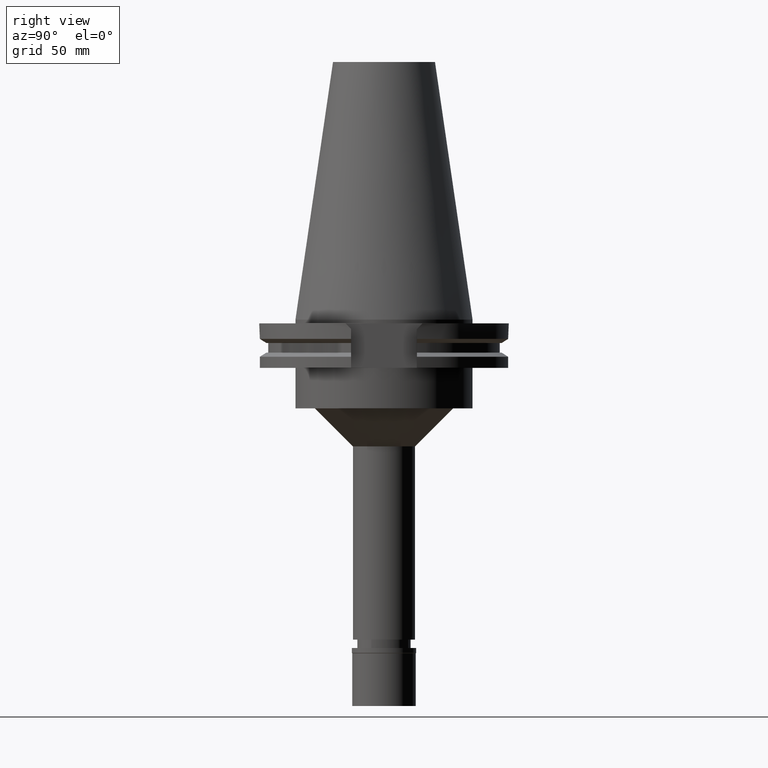
[diagram: clean part render]
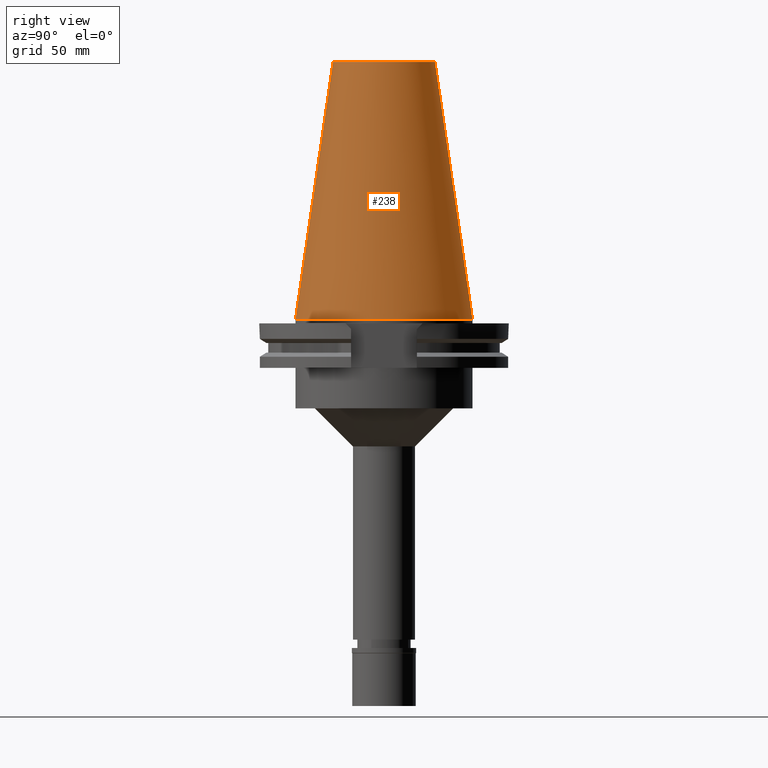
[diagram: same view with one face highlighted and labeled with its STEP entity id]
A machine part, right view. The second image highlights one B-rep face of the part: STEP entity #238.
In plain terms, the highlighted conical surface has half-angle 8.297 deg.
Its self-contained STEP definition (entity closure, byte-faithful):
#22 = DIRECTION ( 'NONE',  ( 0.0000000000000000000, 1.000000000000000000, 0.0000000000000000000 ) ) ;
#163 = VERTEX_POINT ( 'NONE', #684 ) ;
#182 = LINE ( 'NONE', #2269, #1262 ) ;
#217 = CONICAL_SURFACE ( 'NONE', #3276, 27.51666211194000056, 0.1448125860318199565 ) ;
#224 = AXIS2_PLACEMENT_3D ( 'NONE', #1837, #1032, #22 ) ;
#230 = DIRECTION ( 'NONE',  ( 0.0000000000000000000, -0.1443069799456937474, -0.9895329683941577192 ) ) ;
#238 = ADVANCED_FACE ( 'NONE', ( #3216 ), #217, .T. ) ;
#275 = ORIENTED_EDGE ( 'NONE', *, *, #1447, .T. ) ;
#344 = CARTESIAN_POINT ( 'NONE',  ( 0.0000000000000000000, -34.92499999999999716, 4.263256414560999963E-13 ) ) ;
#395 = CARTESIAN_POINT ( 'NONE',  ( 0.0000000000000000000, 1.846767373113999857E-14, 50.79999999999999716 ) ) ;
#684 = CARTESIAN_POINT ( 'NONE',  ( 0.0000000000000000000, 20.10832422388000040, 101.5999999999999943 ) ) ;
#706 = EDGE_CURVE ( 'NONE', #163, #1246, #182, .T. ) ;
#951 = EDGE_CURVE ( 'NONE', #1140, #2230, #1814, .T. ) ;
#979 = CARTESIAN_POINT ( 'NONE',  ( 0.0000000000000000000, 34.92499999999999716, 4.263256414560999963E-13 ) ) ;
#1032 = DIRECTION ( 'NONE',  ( 0.0000000000000000000, 0.0000000000000000000, -1.000000000000000000 ) ) ;
#1140 = VERTEX_POINT ( 'NONE', #2967 ) ;
#1193 = DIRECTION ( 'NONE',  ( 0.0000000000000000000, 0.1443069799456937474, -0.9895329683941577192 ) ) ;
#1246 = VERTEX_POINT ( 'NONE', #979 ) ;
#1262 = VECTOR ( 'NONE', #1193, 1000.000000000000114 ) ;
#1319 = EDGE_CURVE ( 'NONE', #1246, #2230, #2656, .T. ) ;
#1447 = EDGE_CURVE ( 'NONE', #163, #1140, #2965, .T. ) ;
#1471 = DIRECTION ( 'NONE',  ( 0.0000000000000000000, 1.000000000000000000, 0.0000000000000000000 ) ) ;
#1691 = AXIS2_PLACEMENT_3D ( 'NONE', #1725, #2005, #1471 ) ;
#1725 = CARTESIAN_POINT ( 'NONE',  ( 0.0000000000000000000, 1.846767373113999857E-14, 8.242295734816999588E-13 ) ) ;
#1814 = LINE ( 'NONE', #2835, #2445 ) ;
#1837 = CARTESIAN_POINT ( 'NONE',  ( 0.0000000000000000000, 1.846767373113999857E-14, 101.5999999999999943 ) ) ;
#1927 = ORIENTED_EDGE ( 'NONE', *, *, #706, .F. ) ;
#1940 = DIRECTION ( 'NONE',  ( 0.0000000000000000000, -1.000000000000000000, 0.0000000000000000000 ) ) ;
#1970 = DIRECTION ( 'NONE',  ( 0.0000000000000000000, 0.0000000000000000000, -1.000000000000000000 ) ) ;
#2005 = DIRECTION ( 'NONE',  ( 0.0000000000000000000, 0.0000000000000000000, -1.000000000000000000 ) ) ;
#2128 = ORIENTED_EDGE ( 'NONE', *, *, #951, .T. ) ;
#2230 = VERTEX_POINT ( 'NONE', #344 ) ;
#2269 = CARTESIAN_POINT ( 'NONE',  ( 0.0000000000000000000, 20.10832422387000307, 101.5999999999999943 ) ) ;
#2445 = VECTOR ( 'NONE', #230, 1000.000000000000114 ) ;
#2656 = CIRCLE ( 'NONE', #1691, 34.92499999999999716 ) ;
#2761 = EDGE_LOOP ( 'NONE', ( #275, #2128, #2892, #1927 ) ) ;
#2835 = CARTESIAN_POINT ( 'NONE',  ( 0.0000000000000000000, -20.10832422387000307, 101.5999999999999943 ) ) ;
#2892 = ORIENTED_EDGE ( 'NONE', *, *, #1319, .F. ) ;
#2965 = CIRCLE ( 'NONE', #224, 20.10832422388000040 ) ;
#2967 = CARTESIAN_POINT ( 'NONE',  ( 0.0000000000000000000, -20.10832422388000040, 101.5999999999999943 ) ) ;
#3216 = FACE_OUTER_BOUND ( 'NONE', #2761, .T. ) ;
#3276 = AXIS2_PLACEMENT_3D ( 'NONE', #395, #1970, #1940 ) ;